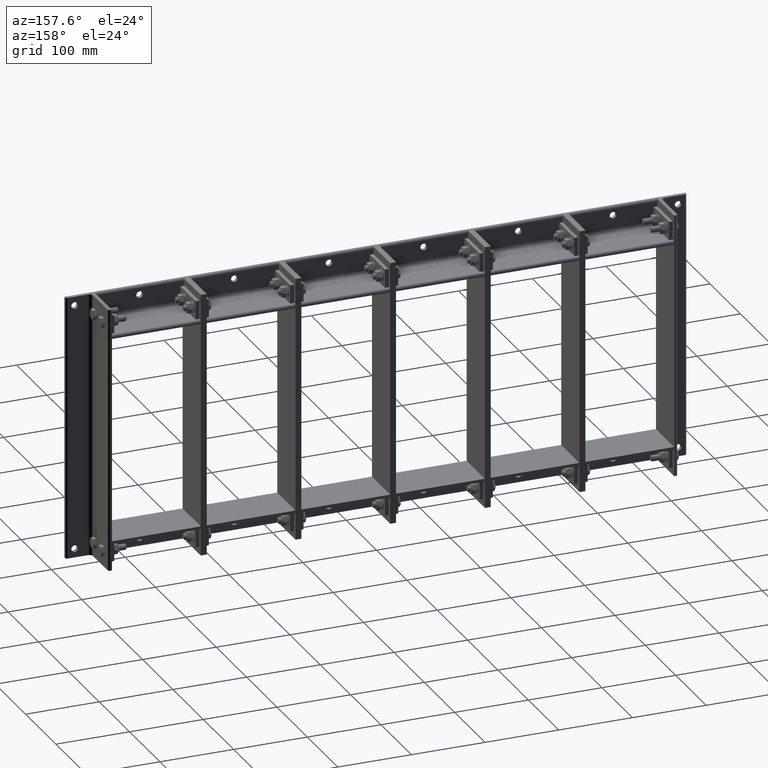
[diagram: clean part render]
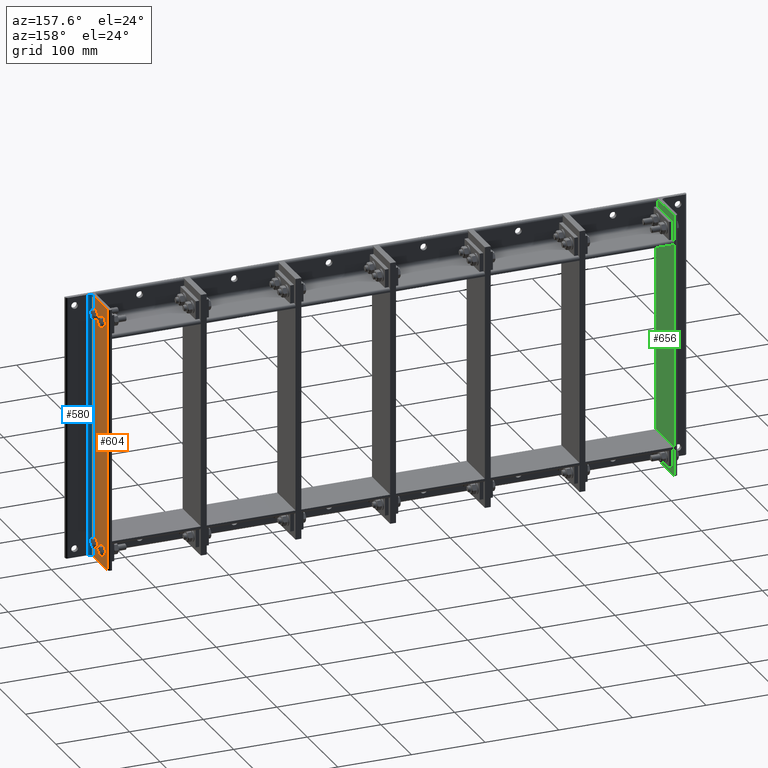
[diagram: same view with three faces highlighted in distinct colors, each labeled with its STEP entity id]
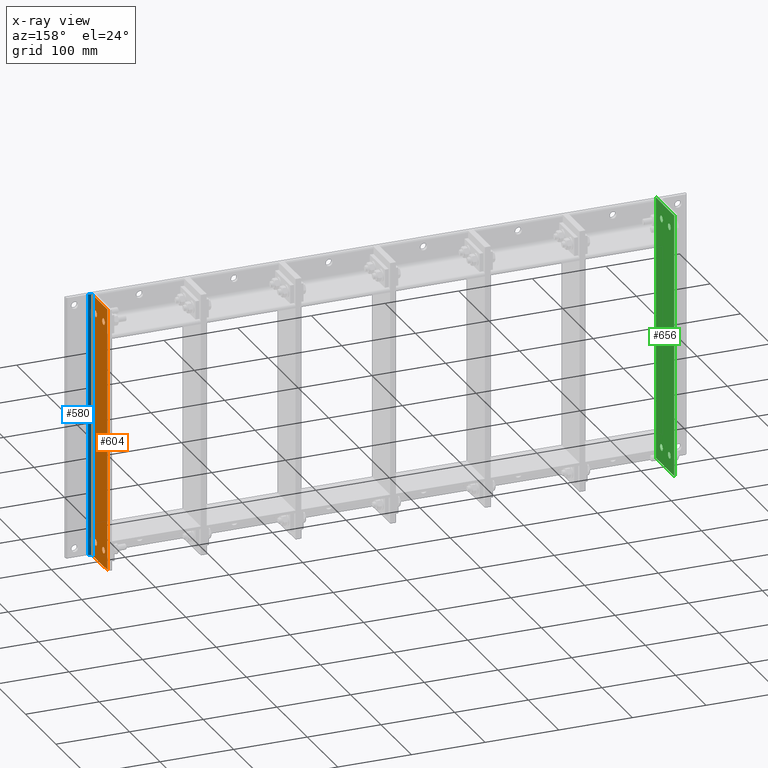
[diagram: x-ray of the same camera — body ghosted, the three highlighted faces saturated]
A machine part, auxiliary view with three faces highlighted in distinct colors.
The next image is the same camera in x-ray (body ghosted, the three faces saturated) — at least one of them is partly hidden behind the body in this view.
Their STEP definitions:

[orange] entity #604 — the highlighted planar face has unit normal (1, -0, 0).
#151=CARTESIAN_POINT('',(4.999999999999992,48.25,22.0));
#152=VERTEX_POINT('',#151);
#153=CARTESIAN_POINT('',(5.0,44.0,22.0));
#154=DIRECTION('',(-1.0,0.0,0.0));
#155=DIRECTION('',(0.0,-1.0,0.0));
#156=AXIS2_PLACEMENT_3D('',#153,#154,#155);
#157=CIRCLE('',#156,4.25);
#158=EDGE_CURVE('',#152,#152,#157,.T.);
#179=CARTESIAN_POINT('',(4.999999999999992,48.25,335.99999999999994));
#180=VERTEX_POINT('',#179);
#181=CARTESIAN_POINT('',(5.0,44.0,335.99999999999994));
#182=DIRECTION('',(-1.0,0.0,0.0));
#183=DIRECTION('',(0.0,-1.0,0.0));
#184=AXIS2_PLACEMENT_3D('',#181,#182,#183);
#185=CIRCLE('',#184,4.25);
#186=EDGE_CURVE('',#180,#180,#185,.T.);
#207=CARTESIAN_POINT('',(5.0,22.25,22.0));
#208=VERTEX_POINT('',#207);
#209=CARTESIAN_POINT('',(5.0,18.0,22.0));
#210=DIRECTION('',(-1.0,0.0,0.0));
#211=DIRECTION('',(0.0,-1.0,0.0));
#212=AXIS2_PLACEMENT_3D('',#209,#210,#211);
#213=CIRCLE('',#212,4.25);
#214=EDGE_CURVE('',#208,#208,#213,.T.);
#235=CARTESIAN_POINT('',(5.0,22.25,335.99999999999994));
#236=VERTEX_POINT('',#235);
#237=CARTESIAN_POINT('',(5.0,18.0,335.99999999999994));
#238=DIRECTION('',(-1.0,0.0,0.0));
#239=DIRECTION('',(0.0,-1.0,0.0));
#240=AXIS2_PLACEMENT_3D('',#237,#238,#239);
#241=CIRCLE('',#240,4.25);
#242=EDGE_CURVE('',#236,#236,#241,.T.);
#431=CARTESIAN_POINT('',(4.999999999999982,57.0,0.0));
#432=VERTEX_POINT('',#431);
#440=CARTESIAN_POINT('',(4.999999999999991,9.999999999999998,0.0));
#441=VERTEX_POINT('',#440);
#442=CARTESIAN_POINT('',(4.999999999999991,9.999999999999998,0.0));
#443=DIRECTION('',(0.0,1.0,0.0));
#444=VECTOR('',#443,47.0);
#445=LINE('',#442,#444);
#446=EDGE_CURVE('',#441,#432,#445,.T.);
#466=CARTESIAN_POINT('',(4.999999999999982,57.0,358.0));
#467=VERTEX_POINT('',#466);
#475=CARTESIAN_POINT('',(4.999999999999982,57.0,358.0));
#476=DIRECTION('',(0.0,0.0,-1.0));
#477=VECTOR('',#476,358.0);
#478=LINE('',#475,#477);
#479=EDGE_CURVE('',#467,#432,#478,.T.);
#498=CARTESIAN_POINT('',(4.999999999999991,9.999999999999998,358.0));
#499=VERTEX_POINT('',#498);
#507=CARTESIAN_POINT('',(4.999999999999982,57.0,358.0));
#508=DIRECTION('',(0.0,-1.0,0.0));
#509=VECTOR('',#508,47.0);
#510=LINE('',#507,#509);
#511=EDGE_CURVE('',#467,#499,#510,.T.);
#570=CARTESIAN_POINT('',(4.999999999999992,9.999999999999998,0.0));
#571=DIRECTION('',(0.0,0.0,1.0));
#572=VECTOR('',#571,358.0);
#573=LINE('',#570,#572);
#574=EDGE_CURVE('',#441,#499,#573,.T.);
#581=CARTESIAN_POINT('',(4.999999999999981,60.0,0.0));
#582=DIRECTION('',(1.0,0.0,0.0));
#583=DIRECTION('',(0.0,0.0,-1.0));
#584=AXIS2_PLACEMENT_3D('',#581,#582,#583);
#585=PLANE('',#584);
#586=ORIENTED_EDGE('',*,*,#479,.F.);
#587=ORIENTED_EDGE('',*,*,#511,.T.);
#588=ORIENTED_EDGE('',*,*,#574,.F.);
#589=ORIENTED_EDGE('',*,*,#446,.T.);
#590=EDGE_LOOP('',(#586,#587,#588,#589));
#591=FACE_OUTER_BOUND('',#590,.T.);
#592=ORIENTED_EDGE('',*,*,#158,.T.);
#593=EDGE_LOOP('',(#592));
#594=FACE_BOUND('',#593,.T.);
#595=ORIENTED_EDGE('',*,*,#186,.T.);
#596=EDGE_LOOP('',(#595));
#597=FACE_BOUND('',#596,.T.);
#598=ORIENTED_EDGE('',*,*,#214,.T.);
#599=EDGE_LOOP('',(#598));
#600=FACE_BOUND('',#599,.T.);
#601=ORIENTED_EDGE('',*,*,#242,.T.);
#602=EDGE_LOOP('',(#601));
#603=FACE_BOUND('',#602,.T.);
#604=ADVANCED_FACE('',(#591,#594,#597,#600,#603),#585,.T.);

[blue] entity #580 — the highlighted cylindrical surface (edge-blend (fillet) strip) has radius 5 mm, axis along (0, 0, 1).
#362=CARTESIAN_POINT('',(9.999999999999991,4.999999999999996,0.0));
#363=VERTEX_POINT('',#362);
#370=CARTESIAN_POINT('',(9.999999999999991,4.999999999999996,358.0));
#371=VERTEX_POINT('',#370);
#372=CARTESIAN_POINT('',(9.999999999999993,4.999999999999996,358.0));
#373=DIRECTION('',(0.0,0.0,-1.0));
#374=VECTOR('',#373,358.0);
#375=LINE('',#372,#374);
#376=EDGE_CURVE('',#371,#363,#375,.T.);
#440=CARTESIAN_POINT('',(4.999999999999991,9.999999999999998,0.0));
#441=VERTEX_POINT('',#440);
#448=CARTESIAN_POINT('',(9.999999999999991,10.0,0.0));
#449=DIRECTION('',(0.0,0.0,-1.0));
#450=DIRECTION('',(-0.707106781186547,-0.707106781186548,0.0));
#451=AXIS2_PLACEMENT_3D('',#448,#449,#450);
#452=CIRCLE('',#451,5.0);
#453=EDGE_CURVE('',#363,#441,#452,.T.);
#498=CARTESIAN_POINT('',(4.999999999999991,9.999999999999998,358.0));
#499=VERTEX_POINT('',#498);
#500=CARTESIAN_POINT('',(9.999999999999991,10.0,358.0));
#501=DIRECTION('',(0.0,0.0,1.0));
#502=DIRECTION('',(-0.707106781186547,-0.707106781186548,0.0));
#503=AXIS2_PLACEMENT_3D('',#500,#501,#502);
#504=CIRCLE('',#503,5.0);
#505=EDGE_CURVE('',#499,#371,#504,.T.);
#564=CARTESIAN_POINT('',(9.999999999999991,10.0,0.0));
#565=DIRECTION('',(0.0,0.0,1.0));
#566=DIRECTION('',(-0.707106781186547,-0.707106781186548,0.0));
#567=AXIS2_PLACEMENT_3D('',#564,#565,#566);
#568=CYLINDRICAL_SURFACE('',#567,5.0);
#569=ORIENTED_EDGE('',*,*,#453,.T.);
#570=CARTESIAN_POINT('',(4.999999999999992,9.999999999999998,0.0));
#571=DIRECTION('',(0.0,0.0,1.0));
#572=VECTOR('',#571,358.0);
#573=LINE('',#570,#572);
#574=EDGE_CURVE('',#441,#499,#573,.T.);
#575=ORIENTED_EDGE('',*,*,#574,.T.);
#576=ORIENTED_EDGE('',*,*,#505,.T.);
#577=ORIENTED_EDGE('',*,*,#376,.T.);
#578=EDGE_LOOP('',(#569,#575,#576,#577));
#579=FACE_OUTER_BOUND('',#578,.T.);
#580=ADVANCED_FACE('',(#579),#568,.F.);

[green] entity #656 — the highlighted planar face has unit normal (1, -0, 0).
#162=CARTESIAN_POINT('',(-7.960204E-015,39.75,22.0));
#163=VERTEX_POINT('',#162);
#164=CARTESIAN_POINT('',(0.0,44.0,22.0));
#165=DIRECTION('',(1.0,0.0,0.0));
#166=DIRECTION('',(0.0,-1.0,0.0));
#167=AXIS2_PLACEMENT_3D('',#164,#165,#166);
#168=CIRCLE('',#167,4.25);
#169=EDGE_CURVE('',#163,#163,#168,.T.);
#190=CARTESIAN_POINT('',(-7.960204E-015,39.75,335.99999999999994));
#191=VERTEX_POINT('',#190);
#192=CARTESIAN_POINT('',(0.0,44.0,335.99999999999994));
#193=DIRECTION('',(1.0,0.0,0.0));
#194=DIRECTION('',(0.0,-1.0,0.0));
#195=AXIS2_PLACEMENT_3D('',#192,#193,#194);
#196=CIRCLE('',#195,4.25);
#197=EDGE_CURVE('',#191,#191,#196,.T.);
#218=CARTESIAN_POINT('',(0.0,13.75,22.0));
#219=VERTEX_POINT('',#218);
#220=CARTESIAN_POINT('',(0.0,18.0,22.0));
#221=DIRECTION('',(1.0,0.0,0.0));
#222=DIRECTION('',(0.0,-1.0,0.0));
#223=AXIS2_PLACEMENT_3D('',#220,#221,#222);
#224=CIRCLE('',#223,4.25);
#225=EDGE_CURVE('',#219,#219,#224,.T.);
#246=CARTESIAN_POINT('',(0.0,13.75,335.99999999999994));
#247=VERTEX_POINT('',#246);
#248=CARTESIAN_POINT('',(0.0,18.0,335.99999999999994));
#249=DIRECTION('',(1.0,0.0,0.0));
#250=DIRECTION('',(0.0,-1.0,0.0));
#251=AXIS2_PLACEMENT_3D('',#248,#249,#250);
#252=CIRCLE('',#251,4.25);
#253=EDGE_CURVE('',#247,#247,#252,.T.);
#407=CARTESIAN_POINT('',(0.0,0.0,0.0));
#408=VERTEX_POINT('',#407);
#415=CARTESIAN_POINT('',(-1.836970E-014,60.0,0.0));
#416=VERTEX_POINT('',#415);
#417=CARTESIAN_POINT('',(-1.836970E-014,60.0,0.0));
#418=DIRECTION('',(0.0,-1.0,0.0));
#419=VECTOR('',#418,60.0);
#420=LINE('',#417,#419);
#421=EDGE_CURVE('',#416,#408,#420,.T.);
#514=CARTESIAN_POINT('',(-1.836970E-014,60.0,358.0));
#515=VERTEX_POINT('',#514);
#522=CARTESIAN_POINT('',(0.0,0.0,358.0));
#523=VERTEX_POINT('',#522);
#524=CARTESIAN_POINT('',(0.0,0.0,358.0));
#525=DIRECTION('',(0.0,1.0,0.0));
#526=VECTOR('',#525,60.0);
#527=LINE('',#524,#526);
#528=EDGE_CURVE('',#523,#515,#527,.T.);
#554=CARTESIAN_POINT('',(-1.836970E-014,60.0,0.0));
#555=DIRECTION('',(0.0,0.0,1.0));
#556=VECTOR('',#555,358.0);
#557=LINE('',#554,#556);
#558=EDGE_CURVE('',#416,#515,#557,.T.);
#611=CARTESIAN_POINT('',(0.0,0.0,0.0));
#612=DIRECTION('',(0.0,0.0,1.0));
#613=VECTOR('',#612,358.0);
#614=LINE('',#611,#613);
#615=EDGE_CURVE('',#408,#523,#614,.T.);
#633=CARTESIAN_POINT('',(0.0,0.0,0.0));
#634=DIRECTION('',(-1.0,0.0,0.0));
#635=DIRECTION('',(0.0,0.0,1.0));
#636=AXIS2_PLACEMENT_3D('',#633,#634,#635);
#637=PLANE('',#636);
#638=ORIENTED_EDGE('',*,*,#528,.T.);
#639=ORIENTED_EDGE('',*,*,#558,.F.);
#640=ORIENTED_EDGE('',*,*,#421,.T.);
#641=ORIENTED_EDGE('',*,*,#615,.T.);
#642=EDGE_LOOP('',(#638,#639,#640,#641));
#643=FACE_OUTER_BOUND('',#642,.T.);
#644=ORIENTED_EDGE('',*,*,#169,.T.);
#645=EDGE_LOOP('',(#644));
#646=FACE_BOUND('',#645,.T.);
#647=ORIENTED_EDGE('',*,*,#197,.T.);
#648=EDGE_LOOP('',(#647));
#649=FACE_BOUND('',#648,.T.);
#650=ORIENTED_EDGE('',*,*,#225,.T.);
#651=EDGE_LOOP('',(#650));
#652=FACE_BOUND('',#651,.T.);
#653=ORIENTED_EDGE('',*,*,#253,.T.);
#654=EDGE_LOOP('',(#653));
#655=FACE_BOUND('',#654,.T.);
#656=ADVANCED_FACE('',(#643,#646,#649,#652,#655),#637,.T.);